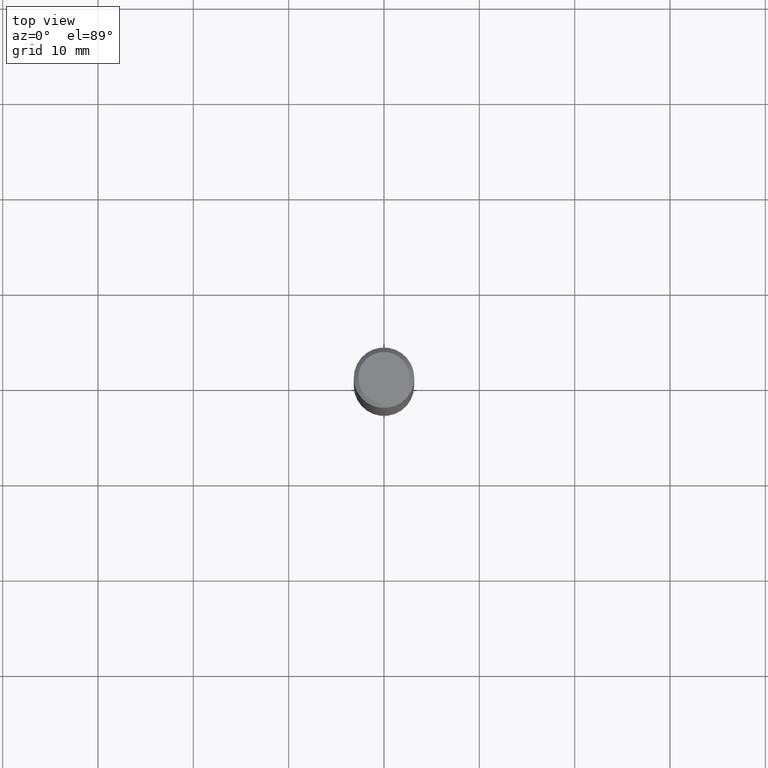
[diagram: clean part render]
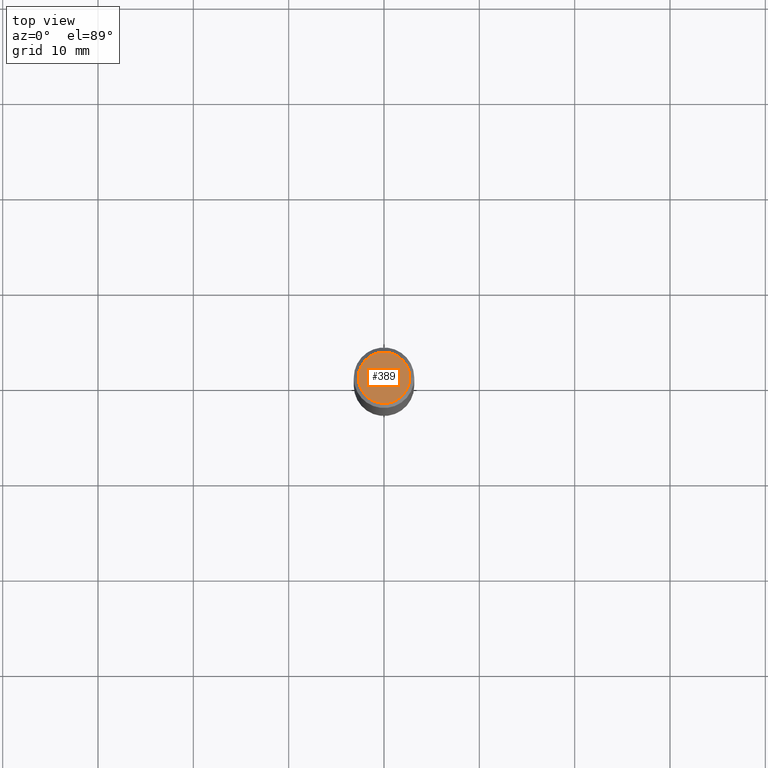
[diagram: same view with one face highlighted and labeled with its STEP entity id]
A machine part, top view. The second image highlights one B-rep face of the part: STEP entity #389.
In plain terms, the highlighted planar face has unit normal (0, -0, -1).
Its self-contained STEP definition (entity closure, byte-faithful):
#3 = CARTESIAN_POINT ( 'NONE',  ( 6.364025535057318316E-46, -9.086141822531067035E-32, -2.602374448188125350E-17 ) ) ;
#11 = DIRECTION ( 'NONE',  ( 1.000000000000000000, -6.982962677686266711E-15, 4.877714189860772023E-29 ) ) ;
#27 = EDGE_LOOP ( 'NONE', ( #138, #186 ) ) ;
#36 = DIRECTION ( 'NONE',  ( -2.445468806185136597E-29, 3.491481338843145583E-15, 1.000000000000000000 ) ) ;
#39 = EDGE_CURVE ( 'NONE', #66, #420, #470, .T. ) ;
#66 = VERTEX_POINT ( 'NONE', #81 ) ;
#75 = EDGE_CURVE ( 'NONE', #420, #66, #102, .T. ) ;
#81 = CARTESIAN_POINT ( 'NONE',  ( 0.1062499999999999972, -8.259777185439880671E-16, -2.602374448187577153E-17 ) ) ;
#84 = CARTESIAN_POINT ( 'NONE',  ( 3.182012767528659158E-46, -4.543070911265533518E-32, -1.301187224094062675E-17 ) ) ;
#102 = CIRCLE ( 'NONE', #442, 0.1062499999999999972 ) ;
#124 = DIRECTION ( 'NONE',  ( -2.445468806185136597E-29, 3.491481338843145583E-15, 1.000000000000000000 ) ) ;
#138 = ORIENTED_EDGE ( 'NONE', *, *, #75, .T. ) ;
#179 = FACE_OUTER_BOUND ( 'NONE', #27, .T. ) ;
#186 = ORIENTED_EDGE ( 'NONE', *, *, #39, .T. ) ;
#214 = AXIS2_PLACEMENT_3D ( 'NONE', #3, #124, #11 ) ;
#233 = DIRECTION ( 'NONE',  ( -1.000000000000000000, 6.982962677686265922E-15, -4.876176775795935793E-29 ) ) ;
#241 = DIRECTION ( 'NONE',  ( 1.000000000000000000, -6.982962677686266711E-15, 4.877714189860772023E-29 ) ) ;
#314 = DIRECTION ( 'NONE',  ( 2.438088387897960049E-29, -3.491481338843145188E-15, -1.000000000000000000 ) ) ;
#339 = PLANE ( 'NONE',  #392 ) ;
#385 = CARTESIAN_POINT ( 'NONE',  ( -0.1062499999999999972, 7.746724220558198188E-16, -2.602374448188655674E-17 ) ) ;
#386 = CARTESIAN_POINT ( 'NONE',  ( 6.364025535057318316E-46, -9.086141822531067035E-32, -2.602374448188125350E-17 ) ) ;
#389 = ADVANCED_FACE ( 'NONE', ( #179 ), #339, .F. ) ;
#392 = AXIS2_PLACEMENT_3D ( 'NONE', #84, #314, #233 ) ;
#420 = VERTEX_POINT ( 'NONE', #385 ) ;
#442 = AXIS2_PLACEMENT_3D ( 'NONE', #386, #36, #241 ) ;
#470 = CIRCLE ( 'NONE', #214, 0.1062499999999999972 ) ;